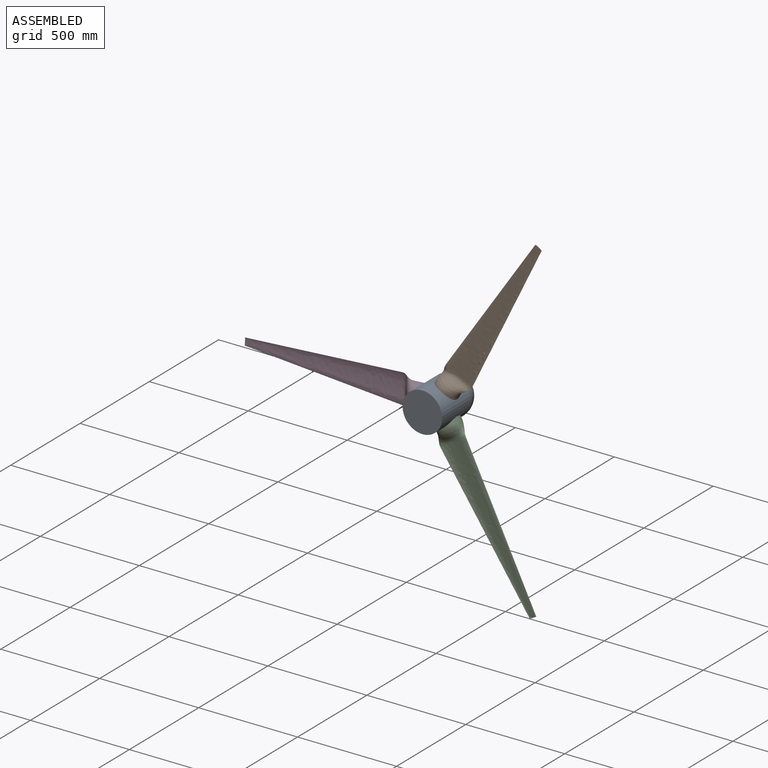
[diagram: assembled view]
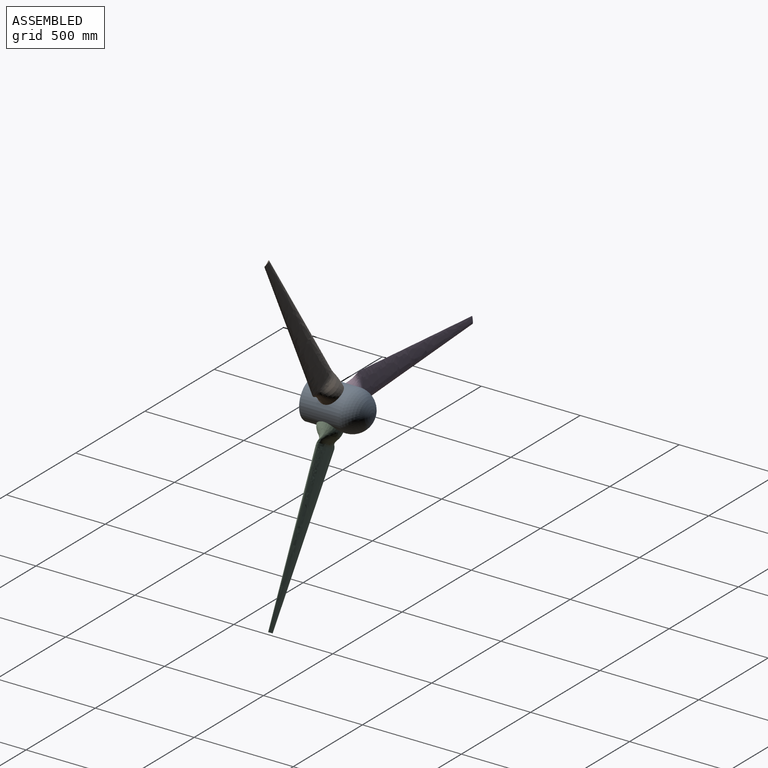
[diagram: assembled view, second angle]
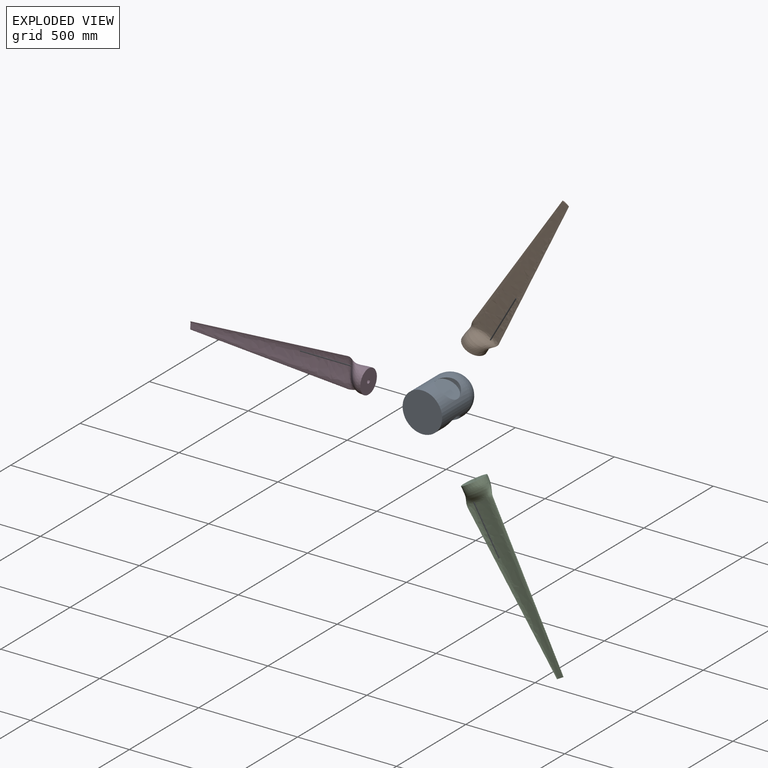
[diagram: exploded view]
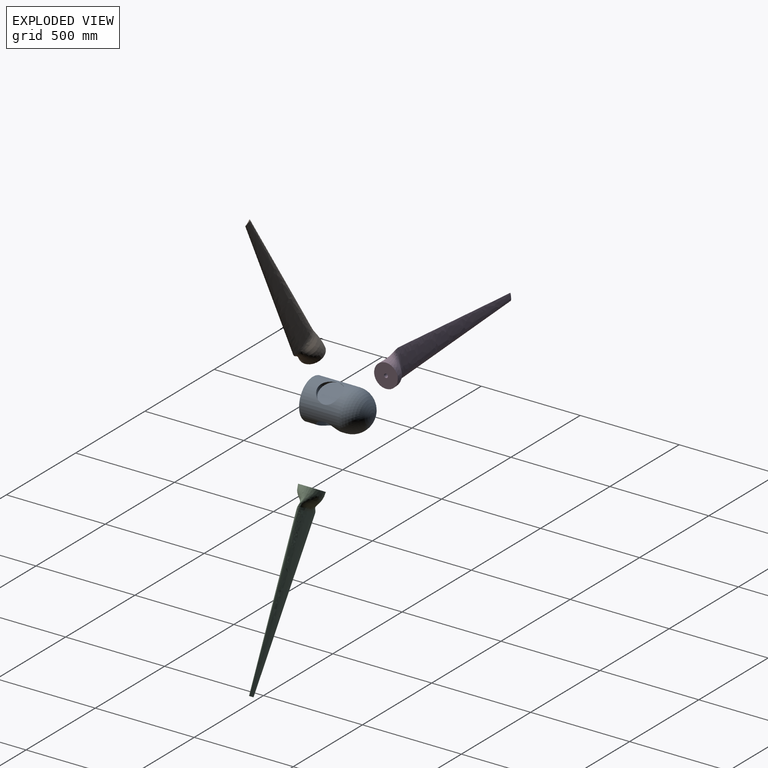
[diagram: exploded view, second angle]
ASSEMBLY  parts=4 mates=3
PART A: 12 faces, bbox 202x300x233.2 mm
  f0: cylinder r=100mm len=200mm, axis (0,1,0), area 89962.8mm2, adj f1,f2,f3,f5,f6,f8,f9,f11
  f1: plane 200x200mm, normal (0,-1,0), area 31415.9mm2, adj f0
  f2: cylinder r=60mm len=120mm, axis (-1,0,0), area 1937.6mm2, adj f0,f4
  f3: cylinder r=60mm len=120mm, axis (-1,0,0), area 1937.2mm2, adj f0,f4
  f4: plane 120x120mm, normal (-1,0,0), area 11309.7mm2, adj f2,f3
  f5: cylinder r=60mm len=113.92mm, axis (0.5,0,-0.87), area 1937.7mm2, adj f0,f7
  f6: cylinder r=60mm len=113.92mm, axis (0.5,0,-0.87), area 1937.2mm2, adj f0,f7
  f7: plane 120x103.92mm, normal (0.5,0,-0.87), area 11309.7mm2, adj f5,f6
  f8: cylinder r=60mm len=113.92mm, axis (0.5,0,0.87), area 1937.3mm2, adj f0,f10
  f9: cylinder r=60mm len=113.92mm, axis (0.5,0,0.87), area 1937.2mm2, adj f0,f10
  f10: plane 120x103.92mm, normal (0.5,0,0.87), area 11309.7mm2, adj f8,f9
  f11: sphere r=100mm, area 62831.9mm2, adj f0
PART B: 6 faces, bbox 151.2x900.3x120.3 mm
  f0: plane 37.9x5.18mm, normal (0,-1,0), area 91.2mm2, adj f1
  f1: bspline ~800x150.25mm, area 154751.7mm2, adj f0,f3
  f2: plane 120x120mm, normal (0,1,0), area 10995.1mm2, adj f3,f4
  f3: bspline ~150.94x120mm, area 36638.1mm2, adj f1,f2
  f4: cylinder r=10mm len=50mm, axis (0,1,0), area 3141.6mm2, adj f2,f5
  f5: plane 20x20mm, normal (0,1,0), area 314.2mm2, adj f4
PART C: same geometry as B
PART D: same geometry as B
PLACE A t=(0.55,100.16,-0.24)mm
PLACE B rot(axis=(-0.94,0.25,0.25),93.8deg) t=(104.4,20.16,147.65)mm
PLACE C rot(axis=(-0.19,0.69,0.69),158.9deg) t=(76.69,20.16,-164.12)mm
PLACE D rot(axis=(-0.58,-0.58,-0.58),120deg) t=(-179.45,20.16,15.76)mm
MATE fastened B.f4 <-> A.f8  axis (-0.5,0,-0.87) through (40.55,20.16,69.04)mm
MATE fastened D.f4 <-> A.f2  axis (1,0,0) through (-79.45,20.16,-0.24)mm
MATE fastened C.f4 <-> A.f5  axis (-0.5,0,0.87) through (40.55,20.16,-69.52)mm
